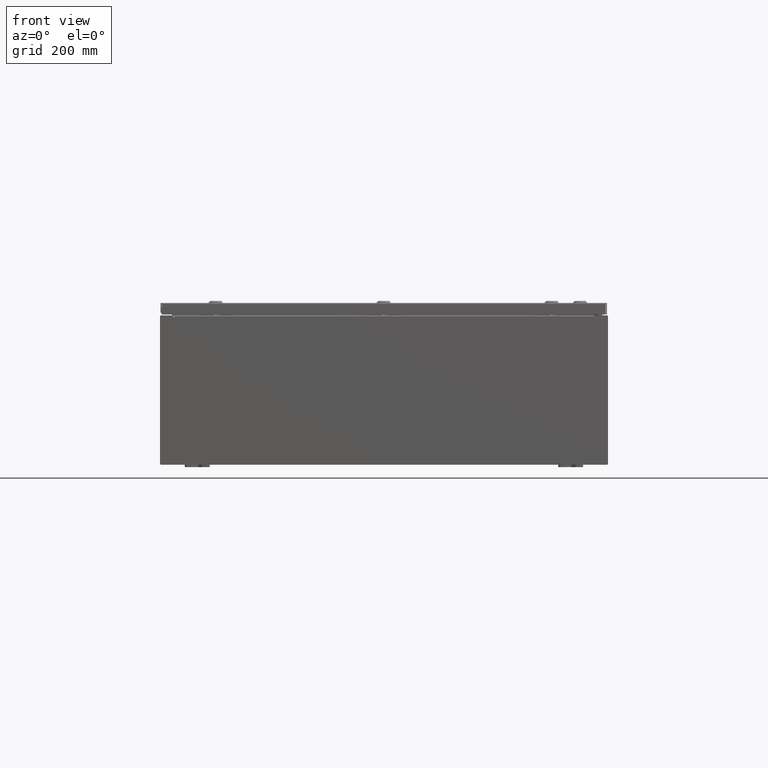
[diagram: clean part render]
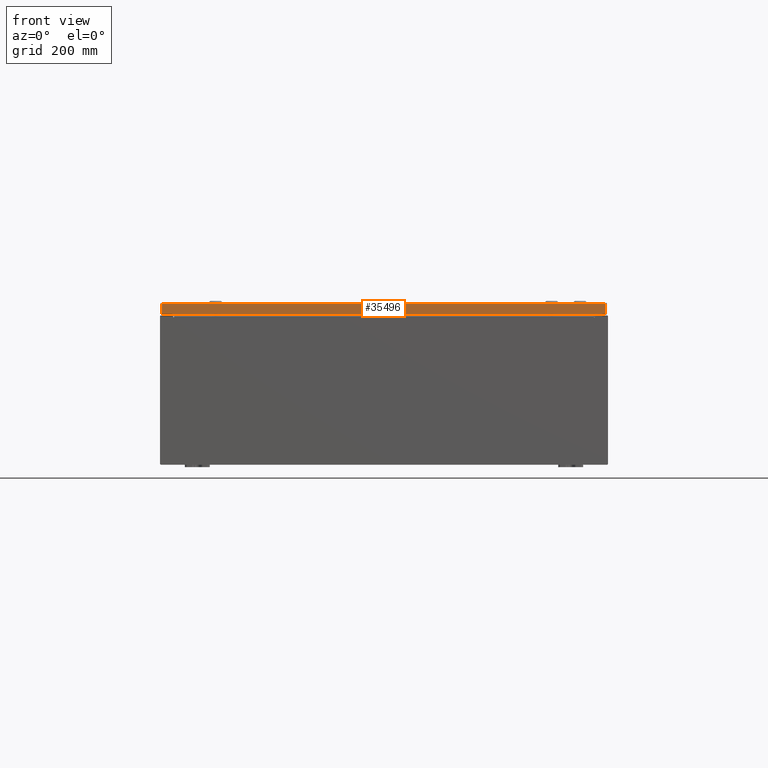
[diagram: same view with one face highlighted and labeled with its STEP entity id]
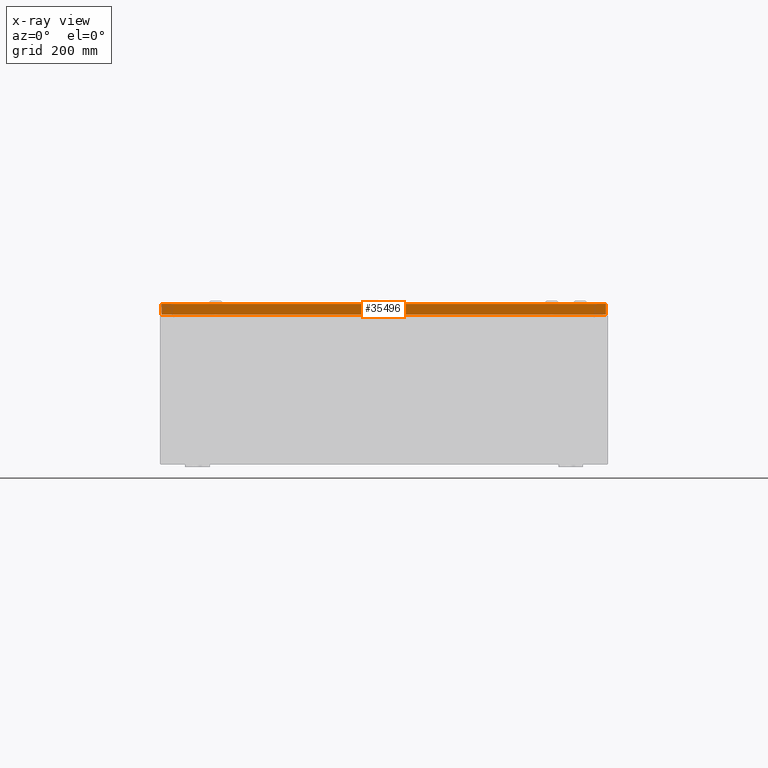
[diagram: x-ray of the same camera — body ghosted, the highlighted face saturated]
A machine part, front view. The second image highlights one B-rep face of the part: STEP entity #35496.
The next image is the same camera in x-ray: the body ghosted, the highlighted face saturated — about 0% of this face is hidden behind the body in this view.
In plain terms, the highlighted planar face has unit normal (-0, 1, -0).
Its self-contained STEP definition (entity closure, byte-faithful):
#417 = ORIENTED_EDGE ( 'NONE', *, *, #5096, .T. ) ;
#710 = VERTEX_POINT ( 'NONE', #25389 ) ;
#3315 = CARTESIAN_POINT ( 'NONE',  ( 17.93749999999999600, -20.93750000000000000, -0.08769999999999550400 ) ) ;
#4288 = VERTEX_POINT ( 'NONE', #68581 ) ;
#5096 = EDGE_CURVE ( 'NONE', #710, #25245, #29777, .T. ) ;
#5649 = VERTEX_POINT ( 'NONE', #38859 ) ;
#5963 = FACE_OUTER_BOUND ( 'NONE', #25498, .T. ) ;
#6237 = ORIENTED_EDGE ( 'NONE', *, *, #18063, .F. ) ;
#6316 = EDGE_CURVE ( 'NONE', #5649, #4288, #46325, .T. ) ;
#7183 = AXIS2_PLACEMENT_3D ( 'NONE', #11741, #27692, #64917 ) ;
#7815 = CARTESIAN_POINT ( 'NONE',  ( 17.93749999999999600, -20.93750000000000700, -0.9376999999999997600 ) ) ;
#8638 = DIRECTION ( 'NONE',  ( 1.000000000000000000, 6.170925750089155900E-031, -3.189293793798686700E-045 ) ) ;
#11741 = CARTESIAN_POINT ( 'NONE',  ( 1.292037578924916800E-029, -20.93750000000000000, 1.063058979987147300E-013 ) ) ;
#18063 = EDGE_CURVE ( 'NONE', #4288, #25245, #28312, .T. ) ;
#18097 = VECTOR ( 'NONE', #38547, 39.37007874015748100 ) ;
#24033 = DIRECTION ( 'NONE',  ( -1.000000000000000000, -8.758115402030108600E-047, 1.218385167906012900E-016 ) ) ;
#25245 = VERTEX_POINT ( 'NONE', #50307 ) ;
#25389 = CARTESIAN_POINT ( 'NONE',  ( -17.84865786437627100, -20.93750000000000000, -0.08769999999999550400 ) ) ;
#25498 = EDGE_LOOP ( 'NONE', ( #65064, #417, #6237, #27275 ) ) ;
#27275 = ORIENTED_EDGE ( 'NONE', *, *, #6316, .F. ) ;
#27692 = DIRECTION ( 'NONE',  ( -6.170925750089155000E-031, 1.000000000000000000, -5.064839849203732200E-015 ) ) ;
#28312 = LINE ( 'NONE', #7815, #53290 ) ;
#29777 = LINE ( 'NONE', #33319, #42230 ) ;
#32714 = LINE ( 'NONE', #3315, #62704 ) ;
#33232 = CARTESIAN_POINT ( 'NONE',  ( 17.84865786437626400, -20.93750000000000000, -0.07469999999999962800 ) ) ;
#33319 = CARTESIAN_POINT ( 'NONE',  ( -17.84865786437627500, -20.93750000000000000, 1.063058979987147300E-013 ) ) ;
#35496 = ADVANCED_FACE ( 'NONE', ( #5963 ), #54204, .F. ) ;
#38547 = DIRECTION ( 'NONE',  ( -0.0000000000000000000, -5.064839849203732200E-015, -1.000000000000000000 ) ) ;
#38859 = CARTESIAN_POINT ( 'NONE',  ( 17.84865786437626100, -20.93750000000000000, -0.08769999999999550400 ) ) ;
#42230 = VECTOR ( 'NONE', #49404, 39.37007874015748100 ) ;
#46325 = LINE ( 'NONE', #33232, #18097 ) ;
#49404 = DIRECTION ( 'NONE',  ( 0.0000000000000000000, -5.064839849203732200E-015, -1.000000000000000000 ) ) ;
#50307 = CARTESIAN_POINT ( 'NONE',  ( -17.84865786437627100, -20.93750000000000700, -0.9376999999999954300 ) ) ;
#53290 = VECTOR ( 'NONE', #24033, 39.37007874015748100 ) ;
#54204 = PLANE ( 'NONE',  #7183 ) ;
#62704 = VECTOR ( 'NONE', #8638, 39.37007874015748100 ) ;
#63935 = EDGE_CURVE ( 'NONE', #710, #5649, #32714, .T. ) ;
#64917 = DIRECTION ( 'NONE',  ( 0.0000000000000000000, 5.064839849203732200E-015, 1.000000000000000000 ) ) ;
#65064 = ORIENTED_EDGE ( 'NONE', *, *, #63935, .F. ) ;
#68581 = CARTESIAN_POINT ( 'NONE',  ( 17.84865786437626400, -20.93750000000000700, -0.9376999999999997600 ) ) ;